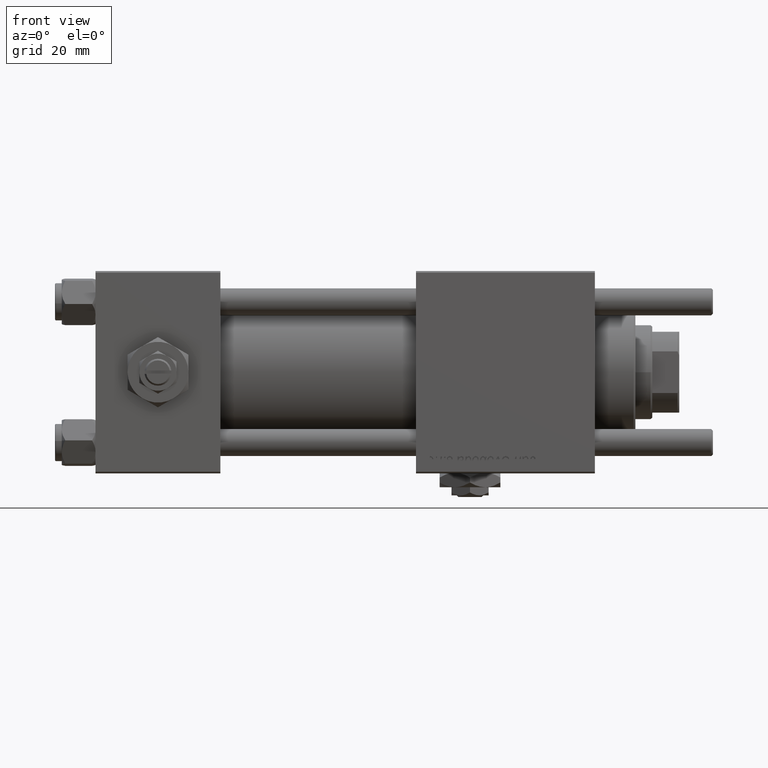
[diagram: clean part render]
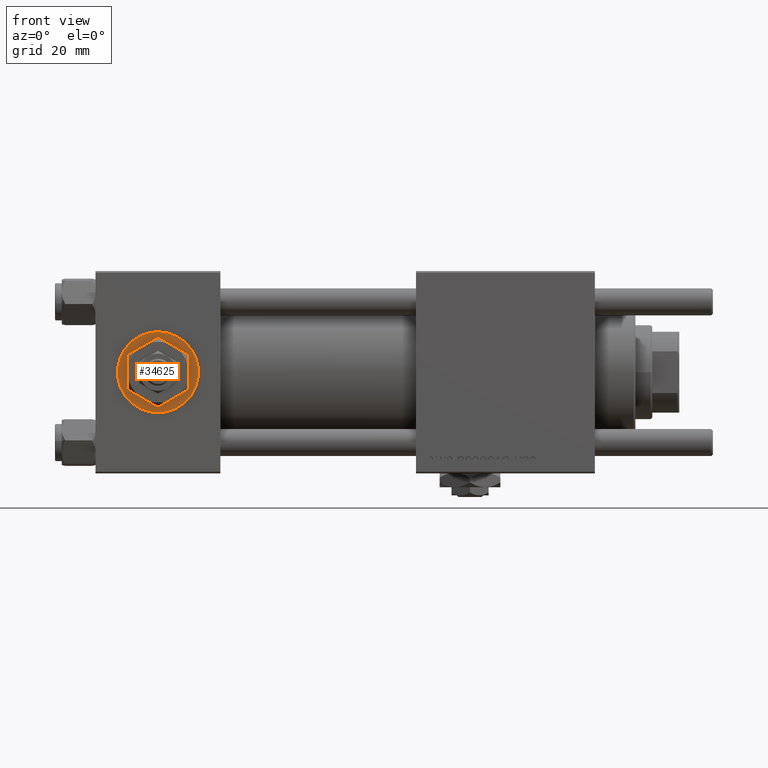
[diagram: same view with one face highlighted and labeled with its STEP entity id]
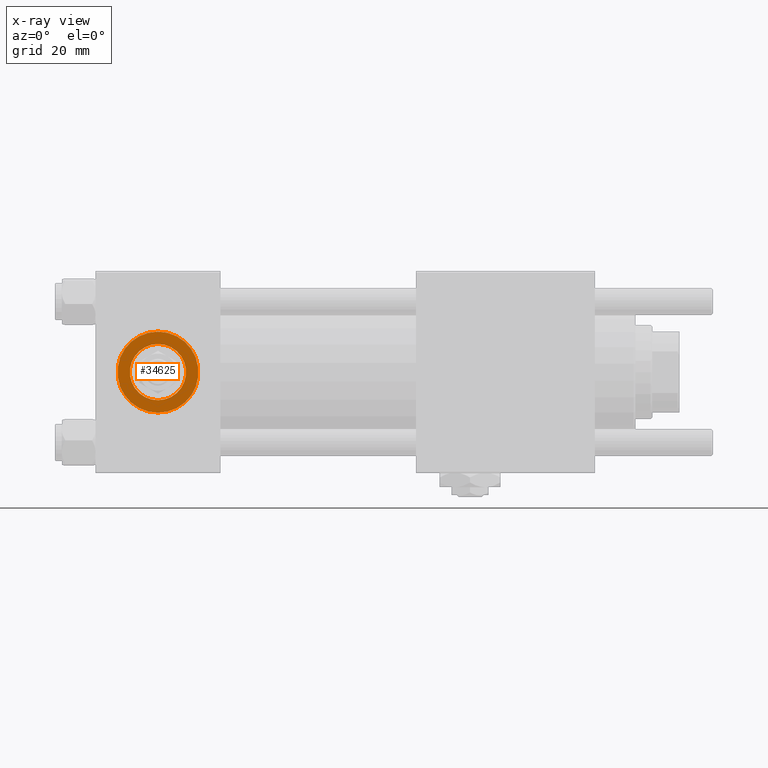
[diagram: x-ray of the same camera — body ghosted, the highlighted face saturated]
A machine part, front view. The second image highlights one B-rep face of the part: STEP entity #34625.
The next image is the same camera in x-ray: the body ghosted, the highlighted face saturated — about 0% of this face is hidden behind the body in this view.
In plain terms, the highlighted planar face has unit normal (0, -1, -0).
Its self-contained STEP definition (entity closure, byte-faithful):
#528 = DIRECTION ( 'NONE',  ( 0.000000000000000000, 0.000000000000000000, -1.000000000000000000 ) ) ;
#961 = EDGE_CURVE ( 'NONE', #15129, #49209, #50537, .T. ) ;
#2578 = VERTEX_POINT ( 'NONE', #4257 ) ;
#2985 = DIRECTION ( 'NONE',  ( 0.000000000000000000, -1.000000000000000000, -8.673617379884036705E-17 ) ) ;
#3316 = CIRCLE ( 'NONE', #50839, 8.330000000000001847 ) ;
#4257 = CARTESIAN_POINT ( 'NONE',  ( 18.50000000000000000, -29.80000000000000071, -8.330000000000001847 ) ) ;
#4967 = ORIENTED_EDGE ( 'NONE', *, *, #15655, .F. ) ;
#6346 = DIRECTION ( 'NONE',  ( 0.000000000000000000, 0.000000000000000000, -1.000000000000000000 ) ) ;
#6840 = AXIS2_PLACEMENT_3D ( 'NONE', #15861, #34022, #6346 ) ;
#6863 = CARTESIAN_POINT ( 'NONE',  ( 18.50000000000000000, -29.80000000000000071, 1.734723475976807403E-17 ) ) ;
#8572 = ORIENTED_EDGE ( 'NONE', *, *, #45685, .T. ) ;
#12028 = CARTESIAN_POINT ( 'NONE',  ( 18.50000000000000000, -29.80000000000000071, -12.00000000000000178 ) ) ;
#15129 = VERTEX_POINT ( 'NONE', #40905 ) ;
#15655 = EDGE_CURVE ( 'NONE', #2578, #30442, #3316, .T. ) ;
#15861 = CARTESIAN_POINT ( 'NONE',  ( 18.50000000000000000, -29.80000000000000071, 1.734723475976807403E-17 ) ) ;
#16073 = DIRECTION ( 'NONE',  ( 0.000000000000000000, 0.000000000000000000, -1.000000000000000000 ) ) ;
#17174 = ORIENTED_EDGE ( 'NONE', *, *, #961, .T. ) ;
#17475 = EDGE_LOOP ( 'NONE', ( #8572, #17174 ) ) ;
#17508 = CARTESIAN_POINT ( 'NONE',  ( 18.50000000000000000, -29.80000000000000071, 1.734723475976808635E-17 ) ) ;
#17991 = DIRECTION ( 'NONE',  ( 0.000000000000000000, -1.000000000000000000, -8.673617379884036705E-17 ) ) ;
#20163 = AXIS2_PLACEMENT_3D ( 'NONE', #50032, #53621, #35758 ) ;
#21898 = AXIS2_PLACEMENT_3D ( 'NONE', #40616, #17991, #36151 ) ;
#23108 = CARTESIAN_POINT ( 'NONE',  ( 18.50000000000000000, -29.80000000000000071, 8.330000000000001847 ) ) ;
#24144 = ORIENTED_EDGE ( 'NONE', *, *, #54137, .F. ) ;
#27510 = PLANE ( 'NONE',  #21898 ) ;
#30442 = VERTEX_POINT ( 'NONE', #23108 ) ;
#33184 = CIRCLE ( 'NONE', #54120, 12.00000000000000178 ) ;
#34022 = DIRECTION ( 'NONE',  ( 0.000000000000000000, -1.000000000000000000, -8.673617379884036705E-17 ) ) ;
#34625 = ADVANCED_FACE ( 'NONE', ( #45368, #54609 ), #27510, .T. ) ;
#35758 = DIRECTION ( 'NONE',  ( 0.000000000000000000, 0.000000000000000000, -1.000000000000000000 ) ) ;
#36151 = DIRECTION ( 'NONE',  ( 0.000000000000000000, 8.673617379884036705E-17, -1.000000000000000000 ) ) ;
#40616 = CARTESIAN_POINT ( 'NONE',  ( 18.50000000000000000, -29.80000000000000071, 1.734723475976807403E-17 ) ) ;
#40905 = CARTESIAN_POINT ( 'NONE',  ( 18.50000000000000000, -29.80000000000000071, 12.00000000000000178 ) ) ;
#45368 = FACE_BOUND ( 'NONE', #48044, .T. ) ;
#45685 = EDGE_CURVE ( 'NONE', #49209, #15129, #33184, .T. ) ;
#48044 = EDGE_LOOP ( 'NONE', ( #4967, #24144 ) ) ;
#48677 = CIRCLE ( 'NONE', #20163, 8.330000000000001847 ) ;
#49209 = VERTEX_POINT ( 'NONE', #12028 ) ;
#50032 = CARTESIAN_POINT ( 'NONE',  ( 18.50000000000000000, -29.80000000000000071, 1.734723475976808635E-17 ) ) ;
#50537 = CIRCLE ( 'NONE', #6840, 12.00000000000000178 ) ;
#50839 = AXIS2_PLACEMENT_3D ( 'NONE', #17508, #54118, #528 ) ;
#53621 = DIRECTION ( 'NONE',  ( 0.000000000000000000, -1.000000000000000000, -8.673617379884036705E-17 ) ) ;
#54118 = DIRECTION ( 'NONE',  ( 0.000000000000000000, -1.000000000000000000, -8.673617379884036705E-17 ) ) ;
#54120 = AXIS2_PLACEMENT_3D ( 'NONE', #6863, #2985, #16073 ) ;
#54137 = EDGE_CURVE ( 'NONE', #30442, #2578, #48677, .T. ) ;
#54609 = FACE_OUTER_BOUND ( 'NONE', #17475, .T. ) ;